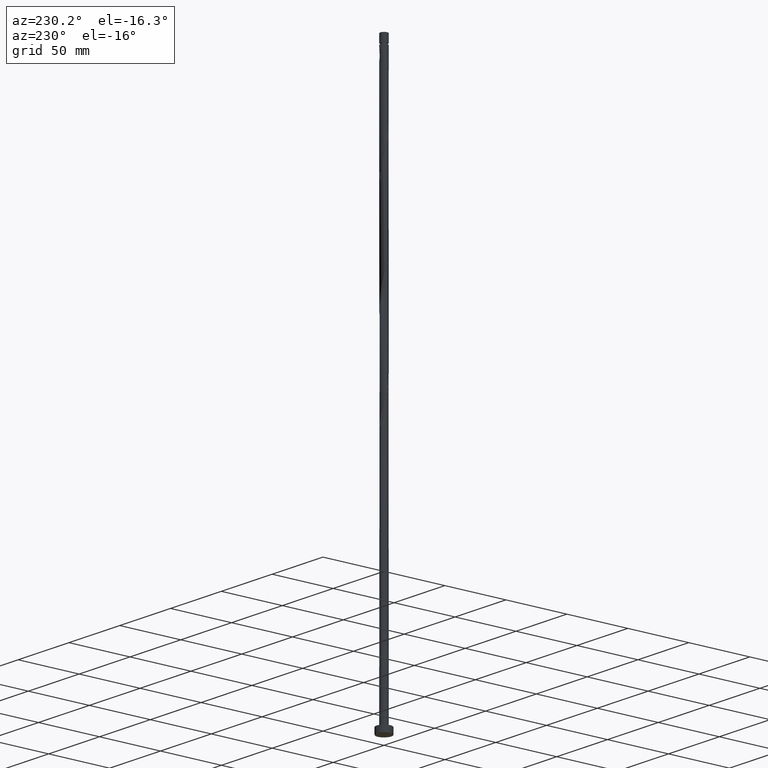
[diagram: clean part render]
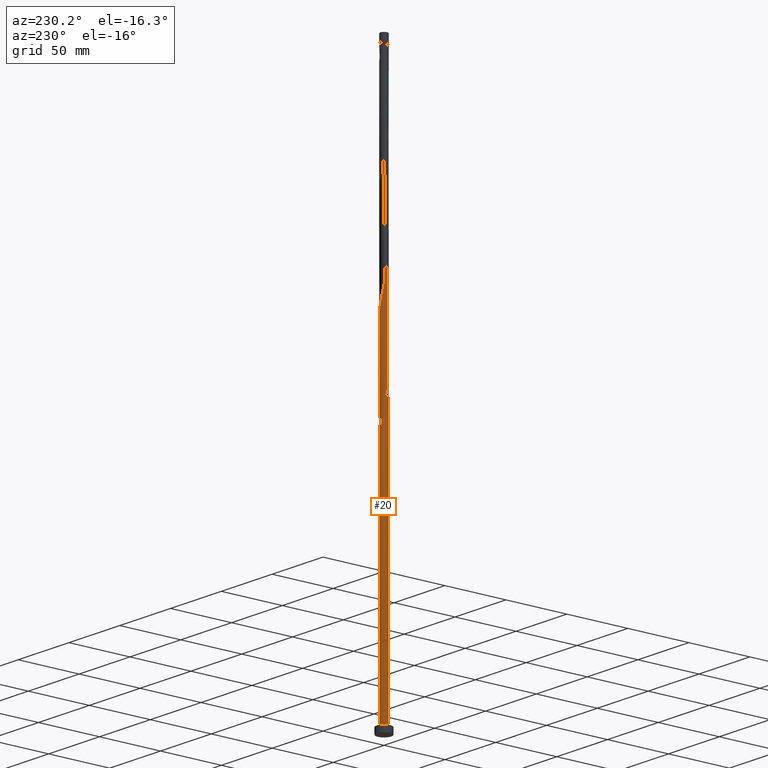
[diagram: same view with one face highlighted and labeled with its STEP entity id]
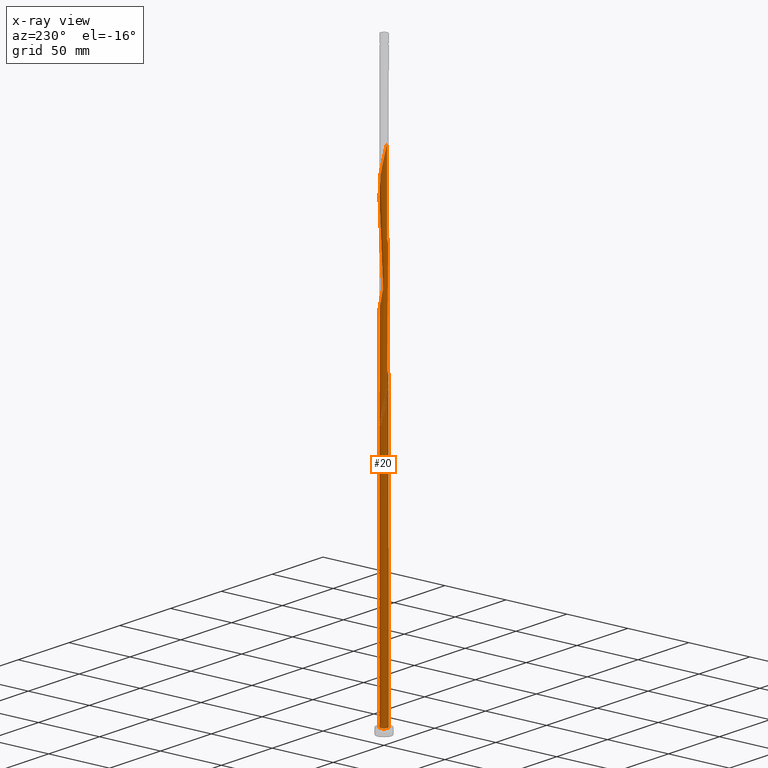
[diagram: x-ray of the same camera — body ghosted, the highlighted face saturated]
A machine part, auxiliary view. The second image highlights one B-rep face of the part: STEP entity #20.
The next image is the same camera in x-ray: the body ghosted, the highlighted face saturated — about 0% of this face is hidden behind the body in this view.
In plain terms, the highlighted cylindrical surface (bore or boss wall) has radius 3 mm, axis along (-0, -0, -1).
Its self-contained STEP definition (entity closure, byte-faithful):
#3 = CARTESIAN_POINT ( 'NONE',  ( -2.129757576223802573, 2.112849418798543155, 293.8623400749142434 ) ) ;
#10 = VECTOR ( 'NONE', #584, 1000.000000000000000 ) ;
#13 = CARTESIAN_POINT ( 'NONE',  ( 2.652881170764466390, 1.431616744321172696, 269.1227567415808153 ) ) ;
#15 = CARTESIAN_POINT ( 'NONE',  ( -3.000000000000000444, 0.000000000000000000, 5.000000000000000000 ) ) ;
#20 = ADVANCED_FACE ( 'NONE', ( #776 ), #1052, .T. ) ;
#21 = CARTESIAN_POINT ( 'NONE',  ( 2.487746701027921947, 1.676638408102570477, 270.4248400749142434 ) ) ;
#28 = CARTESIAN_POINT ( 'NONE',  ( 2.940000000000004388, 0.5969924622639755096, 265.2165067415808721 ) ) ;
#58 = CARTESIAN_POINT ( 'NONE',  ( -2.999976176089781177, -0.01195587277277063848, 220.9456734082475577 ) ) ;
#70 = CARTESIAN_POINT ( 'NONE',  ( -1.656756518304340675, -2.501031355072563578, 233.9665067415808437 ) ) ;
#83 = VERTEX_POINT ( 'NONE', #1685 ) ;
#89 = CARTESIAN_POINT ( 'NONE',  ( -0.5969924622639751766, 2.940000000000003944, 202.7165067415808153 ) ) ;
#103 = CARTESIAN_POINT ( 'NONE',  ( 2.767041272681221020, 1.159086966227606652, 351.1540067415808153 ) ) ;
#106 = ORIENTED_EDGE ( 'NONE', *, *, #1174, .F. ) ;
#110 = CARTESIAN_POINT ( 'NONE',  ( -1.431616744321173584, 2.652881170764465502, 206.6227567415808153 ) ) ;
#112 = CARTESIAN_POINT ( 'NONE',  ( 2.129757576223802129, -2.112849418798543599, 335.5290067415808153 ) ) ;
#117 = CARTESIAN_POINT ( 'NONE',  ( -0.5735401742041599249, 2.944664950138445647, 207.9248400749141865 ) ) ;
#120 = CARTESIAN_POINT ( 'NONE',  ( 2.998798625402031348, 0.3074277363939131869, 347.2477567415807016 ) ) ;
#124 = CARTESIAN_POINT ( 'NONE',  ( 0.5969924622639762868, 2.939999999999999059, 202.7165067415808153 ) ) ;
#133 = CARTESIAN_POINT ( 'NONE',  ( -2.664207629581486714, 1.410426430302974099, 381.1019234082475009 ) ) ;
#142 = CARTESIAN_POINT ( 'NONE',  ( 1.903086606305707251, 2.337855080563639998, 274.3310900749141865 ) ) ;
#151 = CARTESIAN_POINT ( 'NONE',  ( 2.888176173499371391, -0.8635643575599518673, 258.7060900749142434 ) ) ;
#154 = CARTESIAN_POINT ( 'NONE',  ( -2.888176173499371391, 0.8635643575599518673, 217.0394234082475577 ) ) ;
#160 = CARTESIAN_POINT ( 'NONE',  ( -2.652881170764465946, -1.431616744321172918, 310.7894234082476146 ) ) ;
#171 = CARTESIAN_POINT ( 'NONE',  ( -1.159086966227606430, 2.767041272681221020, 288.6540067415808153 ) ) ;
#178 = CARTESIAN_POINT ( 'NONE',  ( -0.8635643575599518673, -2.888176173499371391, 321.2060900749141865 ) ) ;
#211 = CARTESIAN_POINT ( 'NONE',  ( -2.112849418798543599, -2.129757576223802129, 231.3623400749142149 ) ) ;
#226 = ORIENTED_EDGE ( 'NONE', *, *, #1134, .F. ) ;
#237 = CARTESIAN_POINT ( 'NONE',  ( -3.000000000000000444, 0.000000000000000000, 460.5299999999999727 ) ) ;
#248 = CARTESIAN_POINT ( 'NONE',  ( -1.676638408102569588, 2.487746701027922391, 374.5915067415808721 ) ) ;
#253 = CARTESIAN_POINT ( 'NONE',  ( -2.112849418798539158, 2.129757576223799909, 215.7373400749141581 ) ) ;
#260 = CARTESIAN_POINT ( 'NONE',  ( 0.8635643575599523114, 2.888176173499370947, 362.8727567415808153 ) ) ;
#270 = CARTESIAN_POINT ( 'NONE',  ( -2.501031355072564466, 1.656756518304340453, 379.7998400749143002 ) ) ;
#279 = CARTESIAN_POINT ( 'NONE',  ( -1.921660071883964704, 2.322612231291378393, 209.2269234082475293 ) ) ;
#298 = CARTESIAN_POINT ( 'NONE',  ( -0.8635643575599494248, 2.888176173499366506, 209.2269234082475009 ) ) ;
#300 = CARTESIAN_POINT ( 'NONE',  ( 3.001153726777531450, -0.2835159908483711466, 261.3102567415808721 ) ) ;
#303 = CARTESIAN_POINT ( 'NONE',  ( -0.5969924622639751766, 2.940000000000003944, 202.7165067415808153 ) ) ;
#308 = CARTESIAN_POINT ( 'NONE',  ( -2.767041272681221020, -1.159086966227606208, 309.4873400749143002 ) ) ;
#317 = CARTESIAN_POINT ( 'NONE',  ( 1.676638408102569366, -2.487746701027922835, 249.5915067415808721 ) ) ;
#323 = AXIS2_PLACEMENT_3D ( 'NONE', #720, #1940, #1628 ) ;
#325 = CARTESIAN_POINT ( 'NONE',  ( 0.5969924622639757317, -2.940000000000004388, 244.3831734082475577 ) ) ;
#333 = CARTESIAN_POINT ( 'NONE',  ( 2.881201374597976095, 0.8865571881340377214, 266.5185900749141865 ) ) ;
#355 = CARTESIAN_POINT ( 'NONE',  ( -0.2835159908483709801, -3.001153726777531450, 240.4769234082475009 ) ) ;
#364 = CARTESIAN_POINT ( 'NONE',  ( -2.322612231291378393, -1.921660071883964704, 230.0602567415808437 ) ) ;
#367 = VERTEX_POINT ( 'NONE', #926 ) ;
#387 = CARTESIAN_POINT ( 'NONE',  ( 1.656756518304341341, 2.501031355072563578, 358.9665067415808153 ) ) ;
#397 = CARTESIAN_POINT ( 'NONE',  ( 0.8865571881340392757, -2.881201374597975651, 329.0185900749141865 ) ) ;
#411 = LINE ( 'NONE', #732, #450 ) ;
#415 = CARTESIAN_POINT ( 'NONE',  ( -2.322612231291373952, 1.921660071883963150, 217.0394234082474725 ) ) ;
#421 = CARTESIAN_POINT ( 'NONE',  ( 3.001153726777531450, -0.2835159908483711466, 344.6435900749141297 ) ) ;
#434 = CARTESIAN_POINT ( 'NONE',  ( -2.944664950138450976, 0.5735401742041613682, 385.0081734082475009 ) ) ;
#437 = VERTEX_POINT ( 'NONE', #124 ) ;
#447 = CARTESIAN_POINT ( 'NONE',  ( -2.487746701027917950, 1.676638408102567590, 218.3415067415808153 ) ) ;
#448 = CARTESIAN_POINT ( 'NONE',  ( -0.01195587277276957683, 2.999976176089781621, 283.4456734082474441 ) ) ;
#450 = VECTOR ( 'NONE', #1347, 1000.000000000000000 ) ;
#457 = CARTESIAN_POINT ( 'NONE',  ( -2.999976176089781177, -0.01195587277277063848, 304.2790067415808721 ) ) ;
#467 = CARTESIAN_POINT ( 'NONE',  ( 2.129757576223802129, -2.112849418798543599, 252.1956734082475009 ) ) ;
#475 = CARTESIAN_POINT ( 'NONE',  ( -2.664207629581486714, 1.410426430302974099, 297.7685900749143002 ) ) ;
#488 = CARTESIAN_POINT ( 'NONE',  ( -1.676638408102569588, 2.487746701027922391, 291.2581734082475009 ) ) ;
#490 = DIRECTION ( 'NONE',  ( 0.000000000000000000, 0.000000000000000000, 1.000000000000000000 ) ) ;
#496 =( BOUNDED_CURVE ( )  B_SPLINE_CURVE ( 2, ( #818, #1440, #58, #1894, #808, #975, #1125, #1903, #1737, #364, #211, #1450, #70, #657, #1884, #510, #1729, #355, #967, #1378, #325, #937, #1670, #917, #317, #632, #467, #1853, #1824, #1210, #1863, #151, #1074, #300, #759, #753, #28, #333, #1977, #13, #21, #1531, #607, #142, #597, #1238, #947, #1687, #626, #1247, #448, #1525, #927, #1220, #171, #618, #488, #1540, #3, #1707, #1058, #475, #1093, #1368, #778, #1833, #457, #912, #1067, #1679, #308, #160, #767, #1385, #1230, #1843, #1395, #1083, #1697, #178, #1549, #787, #1405, #897, #1949, #397, #1496, #1479, #1019, #570, #112, #1794, #1332, #1941, #721, #549, #1171, #421, #1160, #120, #1770, #853, #103, #1488, #1806, #1629, #1030, #996, #387, #1039, #1316, #260, #1468, #1929, #1917, #1194, #1507, #1150, #1782, #1643, #248, #1007, #1306, #1760, #270, #133, #876, #887, #434, #1607, #700 ),
 .UNSPECIFIED., .F., .T. ) 
 B_SPLINE_CURVE_WITH_KNOTS ( ( 3, 2, 2, 2, 2, 2, 2, 2, 2, 2, 2, 2, 2, 2, 2, 2, 2, 2, 2, 2, 2, 2, 2, 2, 2, 2, 2, 2, 2, 2, 2, 2, 2, 2, 2, 2, 2, 2, 2, 2, 2, 2, 2, 2, 2, 2, 2, 2, 2, 2, 2, 2, 2, 2, 2, 2, 2, 2, 2, 2, 2, 2, 2, 2, 2, 3 ),
 ( 0.05452869021808719879, 0.05468750000000000000, 0.06250000000000000000, 0.07031250000000000000, 0.07812500000000000000, 0.08593750000000000000, 0.09375000000000000000, 0.1015625000000000000, 0.1093750000000000000, 0.1171875000000000000, 0.1250000000000000000, 0.1328125000000000000, 0.1406250000000000000, 0.1484375000000000000, 0.1562500000000000000, 0.1640625000000000000, 0.1718750000000000000, 0.1796875000000000000, 0.1875000000000000000, 0.1953125000000000000, 0.2031250000000000000, 0.2109375000000000000, 0.2187500000000000000, 0.2265625000000000000, 0.2343750000000000000, 0.2421875000000000000, 0.2500000000000000000, 0.2578125000000000000, 0.2656250000000000000, 0.2734375000000000000, 0.2812500000000000000, 0.2890625000000000000, 0.2968750000000000000, 0.3046875000000000000, 0.3125000000000000000, 0.3203125000000000000, 0.3281250000000000000, 0.3359375000000000000, 0.3437500000000000000, 0.3515625000000000000, 0.3593750000000000000, 0.3671875000000000000, 0.3750000000000000000, 0.3828125000000000000, 0.3906250000000000000, 0.3984375000000000000, 0.4062500000000000000, 0.4140625000000000000, 0.4218750000000000000, 0.4296875000000000000, 0.4375000000000000000, 0.4453125000000000000, 0.4531250000000000000, 0.4609375000000000000, 0.4687500000000000000, 0.4765625000000000000, 0.4843750000000000000, 0.4921875000000000000, 0.5000000000000000000, 0.5078125000000000000, 0.5156250000000000000, 0.5234375000000000000, 0.5312500000000000000, 0.5390625000000000000, 0.5468750000000000000, 0.5545286902180869282 ),
 .UNSPECIFIED. ) 
 CURVE ( )  GEOMETRIC_REPRESENTATION_ITEM ( )  RATIONAL_B_SPLINE_CURVE ( ( 0.9089165573359756500, 0.9090019243628804091, 0.9090909090909722323, 0.9047133878838782284, 0.9090909090909722323, 0.9047133878838782284, 0.9090909090909722323, 0.9047133878838782284, 0.9090909090909722323, 0.9047133878838782284, 0.9090909090909722323, 0.9047133878838782284, 0.9090909090909722323, 0.9047133878838782284, 0.9090909090909722323, 0.9047133878838782284, 0.9090909090909722323, 0.9047133878838782284, 0.9090909090909722323, 0.9047133878838782284, 0.9090909090909722323, 0.9047133878838782284, 0.9090909090909722323, 0.9047133878838782284, 0.9090909090909722323, 0.9047133878838782284, 0.9090909090909722323, 0.9047133878838782284, 0.9090909090909722323, 0.9047133878838782284, 0.9090909090909722323, 0.9047133878838782284, 0.9090909090909722323, 0.9047133878838782284, 0.9090909090909722323, 0.9047133878838782284, 0.9090909090909722323, 0.9047133878838782284, 0.9090909090909722323, 0.9047133878838782284, 0.9090909090909722323, 0.9047133878838782284, 0.9090909090909722323, 0.9047133878838782284, 0.9090909090909722323, 0.9047133878838782284, 0.9090909090909722323, 0.9047133878838782284, 0.9090909090909722323, 0.9047133878838782284, 0.9090909090909722323, 0.9047133878838782284, 0.9090909090909722323, 0.9047133878838782284, 0.9090909090909722323, 0.9047133878838782284, 0.9090909090909722323, 0.9047133878838782284, 0.9090909090909722323, 0.9047133878838782284, 0.9090909090909722323, 0.9047133878838782284, 0.9090909090909722323, 0.9047133878838782284, 0.9090909090909722323, 0.9047133878838782284, 0.9090909090909722323, 0.9047133878838782284, 0.9090909090909722323, 0.9047133878838782284, 0.9090909090909722323, 0.9047133878838782284, 0.9090909090909722323, 0.9047133878838782284, 0.9090909090909722323, 0.9047133878838782284, 0.9090909090909722323, 0.9047133878838782284, 0.9090909090909722323, 0.9047133878838782284, 0.9090909090909722323, 0.9047133878838782284, 0.9090909090909722323, 0.9047133878838782284, 0.9090909090909722323, 0.9047133878838782284, 0.9090909090909722323, 0.9047133878838782284, 0.9090909090909722323, 0.9047133878838782284, 0.9090909090909722323, 0.9047133878838782284, 0.9090909090909722323, 0.9047133878838782284, 0.9090909090909722323, 0.9047133878838782284, 0.9090909090909722323, 0.9047133878838782284, 0.9090909090909722323, 0.9047133878838782284, 0.9090909090909722323, 0.9047133878838782284, 0.9090909090909722323, 0.9047133878838782284, 0.9090909090909722323, 0.9047133878838782284, 0.9090909090909722323, 0.9047133878838782284, 0.9090909090909722323, 0.9047133878838782284, 0.9090909090909722323, 0.9047133878838782284, 0.9090909090909722323, 0.9047133878838782284, 0.9090909090909722323, 0.9047133878838782284, 0.9090909090909722323, 0.9047133878838782284, 0.9090909090909722323, 0.9047133878838782284, 0.9090909090909722323, 0.9047133878838782284, 0.9090909090909722323, 0.9047133878838782284, 0.9090909090909722323, 0.9047133878838782284, 0.9090909090909722323, 0.9047133878838782284, 0.9090909090909722323, 0.9048023726119701626, 0.9089165573359754280 ) ) 
 REPRESENTATION_ITEM ( '' )  );
#510 = CARTESIAN_POINT ( 'NONE',  ( -0.8635643575599518673, -2.888176173499371391, 237.8727567415808437 ) ) ;
#515 = CIRCLE ( 'NONE', #869, 3.000000000000000444 ) ;
#517 = EDGE_CURVE ( 'NONE', #1500, #1524, #1041, .T. ) ;
#549 = CARTESIAN_POINT ( 'NONE',  ( 2.888176173499371391, -0.8635643575599518673, 342.0394234082475577 ) ) ;
#570 = CARTESIAN_POINT ( 'NONE',  ( 1.921660071883964704, -2.322612231291378393, 334.2269234082475009 ) ) ;
#578 = CARTESIAN_POINT ( 'NONE',  ( 0.01195587277277136359, 2.999976176089776736, 205.3206734082474725 ) ) ;
#580 = AXIS2_PLACEMENT_3D ( 'NONE', #789, #490, #1688 ) ;
#583 = CARTESIAN_POINT ( 'NONE',  ( -2.337855080563639998, 1.903086606305707695, 211.8310900749141297 ) ) ;
#584 = DIRECTION ( 'NONE',  ( -0.000000000000000000, -0.000000000000000000, -1.000000000000000000 ) ) ;
#589 = CARTESIAN_POINT ( 'NONE',  ( -1.136995393931460097, 2.776191901540424833, 210.5290067415808153 ) ) ;
#590 = ORIENTED_EDGE ( 'NONE', *, *, #1174, .T. ) ;
#595 = CARTESIAN_POINT ( 'NONE',  ( -2.998798625402027351, 0.3074277363939126317, 224.8519234082474725 ) ) ;
#597 = CARTESIAN_POINT ( 'NONE',  ( 1.656756518304341341, 2.501031355072563578, 275.6331734082476714 ) ) ;
#607 = CARTESIAN_POINT ( 'NONE',  ( 2.112849418798544043, 2.129757576223801685, 273.0290067415808153 ) ) ;
#618 = CARTESIAN_POINT ( 'NONE',  ( -1.431616744321173584, 2.652881170764465502, 289.9560900749141865 ) ) ;
#626 = CARTESIAN_POINT ( 'NONE',  ( 0.5735401742041633666, 2.944664950138450976, 280.8415067415808721 ) ) ;
#632 = CARTESIAN_POINT ( 'NONE',  ( 1.921660071883964704, -2.322612231291378393, 250.8935900749141865 ) ) ;
#634 = EDGE_CURVE ( 'NONE', #911, #1763, #959, .T. ) ;
#657 = CARTESIAN_POINT ( 'NONE',  ( -1.410426430302974099, -2.664207629581487602, 235.2685900749141581 ) ) ;
#700 = CARTESIAN_POINT ( 'NONE',  ( -3.000000000000003553, 1.916017180564031245E-15, 387.5596430969172275 ) ) ;
#720 = CARTESIAN_POINT ( 'NONE',  ( 0.000000000000000000, 0.000000000000000000, 5.000000000000000000 ) ) ;
#721 = CARTESIAN_POINT ( 'NONE',  ( 2.776191901540429718, -1.136995393931462539, 340.7373400749142434 ) ) ;
#732 = CARTESIAN_POINT ( 'NONE',  ( -3.000000000000000444, 0.000000000000000000, 460.5299999999999727 ) ) ;
#738 = CARTESIAN_POINT ( 'NONE',  ( -2.999999999999999556, 0.005977960122778577280, 226.1803501650603891 ) ) ;
#750 = CARTESIAN_POINT ( 'NONE',  ( -1.656756518304337789, 2.501031355072560469, 213.1331734082474441 ) ) ;
#753 = CARTESIAN_POINT ( 'NONE',  ( 2.998798625402031348, 0.3074277363939131869, 263.9144234082475009 ) ) ;
#758 = DIRECTION ( 'NONE',  ( -0.000000000000000000, -0.000000000000000000, -1.000000000000000000 ) ) ;
#759 = CARTESIAN_POINT ( 'NONE',  ( 2.999976176089781621, 0.01195587277276968438, 262.6123400749142434 ) ) ;
#767 = CARTESIAN_POINT ( 'NONE',  ( -2.487746701027922391, -1.676638408102569366, 312.0915067415808721 ) ) ;
#776 = FACE_OUTER_BOUND ( 'NONE', #1294, .T. ) ;
#778 = CARTESIAN_POINT ( 'NONE',  ( -2.944664950138450976, 0.5735401742041613682, 301.6748400749141297 ) ) ;
#787 = CARTESIAN_POINT ( 'NONE',  ( -0.2835159908483709801, -3.001153726777531450, 323.8102567415808721 ) ) ;
#789 = CARTESIAN_POINT ( 'NONE',  ( 0.000000000000000000, 0.000000000000000000, 5.000000000000000000 ) ) ;
#808 = CARTESIAN_POINT ( 'NONE',  ( -2.940000000000004388, -0.5969924622639758427, 223.5498400749142434 ) ) ;
#818 = CARTESIAN_POINT ( 'NONE',  ( -3.000000000000003553, 1.916017180564031245E-15, 220.8929764302506555 ) ) ;
#853 = CARTESIAN_POINT ( 'NONE',  ( 2.881201374597976095, 0.8865571881340377214, 349.8519234082475009 ) ) ;
#860 = CARTESIAN_POINT ( 'NONE',  ( -3.000000000000003553, 1.916017180564031245E-15, 220.8929764302506555 ) ) ;
#869 = AXIS2_PLACEMENT_3D ( 'NONE', #1279, #1585, #1430 ) ;
#876 = CARTESIAN_POINT ( 'NONE',  ( -2.776191901540429718, 1.136995393931462983, 382.4040067415809290 ) ) ;
#886 = CARTESIAN_POINT ( 'NONE',  ( -3.000000000000004441, 0.2894394447869437226, 219.6169963248346164 ) ) ;
#887 = CARTESIAN_POINT ( 'NONE',  ( -2.888176173499371391, 0.8635643575599518673, 383.7060900749142434 ) ) ;
#896 = CARTESIAN_POINT ( 'NONE',  ( -2.776191901540429718, 1.136995393931462983, 215.7373400749142149 ) ) ;
#897 = CARTESIAN_POINT ( 'NONE',  ( 0.3074277363939120211, -2.998798625402031348, 326.4144234082475577 ) ) ;
#901 = CARTESIAN_POINT ( 'NONE',  ( -1.903086606305704143, 2.337855080563636889, 214.4352567415808153 ) ) ;
#911 = VERTEX_POINT ( 'NONE', #15 ) ;
#912 = CARTESIAN_POINT ( 'NONE',  ( -2.998798625402031348, -0.3074277363939121321, 305.5810900749141865 ) ) ;
#917 = CARTESIAN_POINT ( 'NONE',  ( 1.431616744321172696, -2.652881170764466390, 248.2894234082475293 ) ) ;
#926 = CARTESIAN_POINT ( 'NONE',  ( -2.999999999999999556, -1.053063917333350848E-15, 226.2067037195776891 ) ) ;
#927 = CARTESIAN_POINT ( 'NONE',  ( -0.5969924622639751766, 2.940000000000004388, 286.0498400749141297 ) ) ;
#937 = CARTESIAN_POINT ( 'NONE',  ( 0.8865571881340392757, -2.881201374597975651, 245.6852567415808437 ) ) ;
#947 = CARTESIAN_POINT ( 'NONE',  ( 1.136995393931462539, 2.776191901540429718, 278.2373400749143002 ) ) ;
#959 = CIRCLE ( 'NONE', #323, 3.000000000000000444 ) ;
#967 = CARTESIAN_POINT ( 'NONE',  ( 0.01195587277276988908, -2.999976176089781621, 241.7790067415809006 ) ) ;
#975 = CARTESIAN_POINT ( 'NONE',  ( -2.881201374597975651, -0.8865571881340392757, 224.8519234082474725 ) ) ;
#996 = CARTESIAN_POINT ( 'NONE',  ( 1.903086606305707251, 2.337855080563639998, 357.6644234082475577 ) ) ;
#1007 = CARTESIAN_POINT ( 'NONE',  ( -1.921660071883964704, 2.322612231291378393, 375.8935900749141297 ) ) ;
#1012 = CARTESIAN_POINT ( 'NONE',  ( -0.2835159908483700919, 3.001153726777527453, 206.6227567415807869 ) ) ;
#1019 = CARTESIAN_POINT ( 'NONE',  ( 1.676638408102569366, -2.487746701027922835, 332.9248400749142434 ) ) ;
#1024 = CARTESIAN_POINT ( 'NONE',  ( 0.5969924622639762868, 2.939999999999999059, 202.7165067415808153 ) ) ;
#1030 = CARTESIAN_POINT ( 'NONE',  ( 2.112849418798544043, 2.129757576223801685, 356.3623400749141297 ) ) ;
#1039 = CARTESIAN_POINT ( 'NONE',  ( 1.410426430302975653, 2.664207629581485826, 360.2685900749141297 ) ) ;
#1041 =( BOUNDED_CURVE ( )  B_SPLINE_CURVE ( 2, ( #303, #1642, #1495, #110, #1959, #279, #1361, #583, #1193, #1805, #896, #154, #1815, #886, #1518 ),
 .UNSPECIFIED., .F., .T. ) 
 B_SPLINE_CURVE_WITH_KNOTS ( ( 3, 2, 2, 2, 2, 2, 2, 3 ),
 ( 0.000000000000000000, 0.007812500000000000000, 0.01562500000000000000, 0.02343750000000000000, 0.03125000000000000000, 0.03906250000000000000, 0.04687500000000000000, 0.05452869021808719185 ),
 .UNSPECIFIED. ) 
 CURVE ( )  GEOMETRIC_REPRESENTATION_ITEM ( )  RATIONAL_B_SPLINE_CURVE ( ( 0.9090909090909722323, 0.9047133878838782284, 0.9090909090909722323, 0.9047133878838782284, 0.9090909090909722323, 0.9047133878838782284, 0.9090909090909722323, 0.9047133878838782284, 0.9090909090909722323, 0.9047133878838782284, 0.9090909090909722323, 0.9047133878838782284, 0.9090909090909722323, 0.9048023726119700516, 0.9089165573359756500 ) ) 
 REPRESENTATION_ITEM ( '' )  );
#1051 = EDGE_CURVE ( 'NONE', #1500, #437, #515, .T. ) ;
#1052 = CYLINDRICAL_SURFACE ( 'NONE', #1249, 3.000000000000000444 ) ;
#1058 = CARTESIAN_POINT ( 'NONE',  ( -2.501031355072564466, 1.656756518304340453, 296.4665067415808721 ) ) ;
#1067 = CARTESIAN_POINT ( 'NONE',  ( -2.940000000000004388, -0.5969924622639758427, 306.8831734082475577 ) ) ;
#1074 = CARTESIAN_POINT ( 'NONE',  ( 2.944664950138450976, -0.5735401742041631445, 260.0081734082475577 ) ) ;
#1075 = EDGE_CURVE ( 'NONE', #1524, #83, #496, .T. ) ;
#1083 = CARTESIAN_POINT ( 'NONE',  ( -1.410426430302974099, -2.664207629581487602, 318.6019234082474441 ) ) ;
#1091 = DIRECTION ( 'NONE',  ( -1.000000000000000000, 0.000000000000000000, 0.000000000000000000 ) ) ;
#1093 = CARTESIAN_POINT ( 'NONE',  ( -2.776191901540429718, 1.136995393931462983, 299.0706734082475009 ) ) ;
#1101 = ORIENTED_EDGE ( 'NONE', *, *, #634, .T. ) ;
#1125 = CARTESIAN_POINT ( 'NONE',  ( -2.767041272681221020, -1.159086966227606208, 226.1540067415808153 ) ) ;
#1134 = EDGE_CURVE ( 'NONE', #83, #367, #411, .T. ) ;
#1150 = CARTESIAN_POINT ( 'NONE',  ( -0.8865571881340392757, 2.881201374597975651, 370.6852567415808153 ) ) ;
#1160 = CARTESIAN_POINT ( 'NONE',  ( 2.999976176089781621, 0.01195587277276968438, 345.9456734082475577 ) ) ;
#1167 =( BOUNDED_CURVE ( )  B_SPLINE_CURVE ( 2, ( #1177, #738, #1955, #595, #1649, #1789, #1668, #1776, #447, #415, #253, #901, #750, #1209, #589, #298, #117, #1012, #578, #1199, #1024 ),
 .UNSPECIFIED., .F., .T. ) 
 B_SPLINE_CURVE_WITH_KNOTS ( ( 3, 2, 2, 2, 2, 2, 2, 2, 2, 2, 3 ),
 ( 0.9295286902180870392, 0.9296875000000000000, 0.9375000000000000000, 0.9453125000000000000, 0.9531250000000000000, 0.9609375000000000000, 0.9687500000000000000, 0.9765625000000000000, 0.9843750000000000000, 0.9921875000000000000, 1.000000000000000000 ),
 .UNSPECIFIED. ) 
 CURVE ( )  GEOMETRIC_REPRESENTATION_ITEM ( )  RATIONAL_B_SPLINE_CURVE ( ( 0.9089165573359695438, 0.9090019243628744139, 0.9090909090909662371, 0.9047133878838722332, 0.9090909090909662371, 0.9047133878838722332, 0.9090909090909662371, 0.9047133878838722332, 0.9090909090909662371, 0.9047133878838722332, 0.9090909090909662371, 0.9047133878838722332, 0.9090909090909662371, 0.9047133878838722332, 0.9090909090909662371, 0.9047133878838722332, 0.9090909090909662371, 0.9047133878838722332, 0.9090909090909662371, 0.9047133878838722332, 0.9090909090909662371 ) ) 
 REPRESENTATION_ITEM ( '' )  );
#1171 = CARTESIAN_POINT ( 'NONE',  ( 2.944664950138450976, -0.5735401742041631445, 343.3415067415808721 ) ) ;
#1174 = EDGE_CURVE ( 'NONE', #1524, #911, #1961, .T. ) ;
#1177 = CARTESIAN_POINT ( 'NONE',  ( -2.999999999999999556, -1.053063917333350651E-15, 226.2067037195776891 ) ) ;
#1193 = CARTESIAN_POINT ( 'NONE',  ( -2.501031355072564466, 1.656756518304340453, 213.1331734082475577 ) ) ;
#1194 = CARTESIAN_POINT ( 'NONE',  ( -0.3074277363939130758, 2.998798625402031348, 368.0810900749142434 ) ) ;
#1199 = CARTESIAN_POINT ( 'NONE',  ( 0.3074277363939126873, 2.998798625402027351, 204.0185900749141865 ) ) ;
#1209 = CARTESIAN_POINT ( 'NONE',  ( -1.410426430302971212, 2.664207629581483605, 211.8310900749141865 ) ) ;
#1210 = CARTESIAN_POINT ( 'NONE',  ( 2.664207629581486714, -1.410426430302975653, 256.1019234082475009 ) ) ;
#1220 = CARTESIAN_POINT ( 'NONE',  ( -0.8865571881340392757, 2.881201374597975651, 287.3519234082475577 ) ) ;
#1230 = CARTESIAN_POINT ( 'NONE',  ( -2.112849418798543599, -2.129757576223802129, 314.6956734082475577 ) ) ;
#1238 = CARTESIAN_POINT ( 'NONE',  ( 1.410426430302975653, 2.664207629581485826, 276.9352567415808153 ) ) ;
#1247 = CARTESIAN_POINT ( 'NONE',  ( 0.2835159908483712576, 3.001153726777531450, 282.1435900749141865 ) ) ;
#1249 = AXIS2_PLACEMENT_3D ( 'NONE', #1403, #758, #1091 ) ;
#1279 = CARTESIAN_POINT ( 'NONE',  ( 0.000000000000000000, 0.000000000000000000, 202.7165067415808153 ) ) ;
#1294 = EDGE_LOOP ( 'NONE', ( #226, #1634, #590, #1101, #1367, #106, #1638, #1773, #1423 ) ) ;
#1306 = CARTESIAN_POINT ( 'NONE',  ( -2.129757576223802573, 2.112849418798543155, 377.1956734082475577 ) ) ;
#1316 = CARTESIAN_POINT ( 'NONE',  ( 1.136995393931462539, 2.776191901540429718, 361.5706734082475577 ) ) ;
#1331 = EDGE_CURVE ( 'NONE', #1763, #911, #1453, .T. ) ;
#1332 = CARTESIAN_POINT ( 'NONE',  ( 2.501031355072563578, -1.656756518304341341, 338.1331734082475577 ) ) ;
#1347 = DIRECTION ( 'NONE',  ( -0.000000000000000000, -0.000000000000000000, -1.000000000000000000 ) ) ;
#1361 = CARTESIAN_POINT ( 'NONE',  ( -2.129757576223802573, 2.112849418798543155, 210.5290067415808721 ) ) ;
#1367 = ORIENTED_EDGE ( 'NONE', *, *, #1331, .T. ) ;
#1368 = CARTESIAN_POINT ( 'NONE',  ( -2.888176173499371391, 0.8635643575599518673, 300.3727567415808153 ) ) ;
#1378 = CARTESIAN_POINT ( 'NONE',  ( 0.3074277363939120211, -2.998798625402031348, 243.0810900749141581 ) ) ;
#1385 = CARTESIAN_POINT ( 'NONE',  ( -2.322612231291378393, -1.921660071883964704, 313.3935900749143002 ) ) ;
#1395 = CARTESIAN_POINT ( 'NONE',  ( -1.656756518304340675, -2.501031355072563578, 317.2998400749141297 ) ) ;
#1403 = CARTESIAN_POINT ( 'NONE',  ( 0.000000000000000000, 0.000000000000000000, 460.5299999999999727 ) ) ;
#1405 = CARTESIAN_POINT ( 'NONE',  ( 0.01195587277276988908, -2.999976176089781621, 325.1123400749141865 ) ) ;
#1423 = ORIENTED_EDGE ( 'NONE', *, *, #1641, .F. ) ;
#1430 = DIRECTION ( 'NONE',  ( -1.000000000000000000, 0.000000000000000000, 0.000000000000000000 ) ) ;
#1440 = CARTESIAN_POINT ( 'NONE',  ( -3.000000000000003553, -0.005977960122783736348, 220.9193299847679555 ) ) ;
#1450 = CARTESIAN_POINT ( 'NONE',  ( -1.903086606305708139, -2.337855080563639554, 232.6644234082475009 ) ) ;
#1453 = CIRCLE ( 'NONE', #580, 3.000000000000000444 ) ;
#1468 = CARTESIAN_POINT ( 'NONE',  ( 0.5735401742041633666, 2.944664950138450976, 364.1748400749142434 ) ) ;
#1479 = CARTESIAN_POINT ( 'NONE',  ( 1.431616744321172696, -2.652881170764466390, 331.6227567415807584 ) ) ;
#1488 = CARTESIAN_POINT ( 'NONE',  ( 2.652881170764466390, 1.431616744321172696, 352.4560900749141865 ) ) ;
#1495 = CARTESIAN_POINT ( 'NONE',  ( -1.159086966227606430, 2.767041272681221020, 205.3206734082475577 ) ) ;
#1496 = CARTESIAN_POINT ( 'NONE',  ( 1.159086966227606652, -2.767041272681221020, 330.3206734082475577 ) ) ;
#1500 = VERTEX_POINT ( 'NONE', #89 ) ;
#1507 = CARTESIAN_POINT ( 'NONE',  ( -0.5969924622639751766, 2.940000000000004388, 369.3831734082475009 ) ) ;
#1518 = CARTESIAN_POINT ( 'NONE',  ( -3.000000000000003553, 1.916017180564031245E-15, 220.8929764302506555 ) ) ;
#1524 = VERTEX_POINT ( 'NONE', #860 ) ;
#1525 = CARTESIAN_POINT ( 'NONE',  ( -0.3074277363939130758, 2.998798625402031348, 284.7477567415809858 ) ) ;
#1531 = CARTESIAN_POINT ( 'NONE',  ( 2.322612231291378393, 1.921660071883964704, 271.7269234082476146 ) ) ;
#1540 = CARTESIAN_POINT ( 'NONE',  ( -1.921660071883964704, 2.322612231291378393, 292.5602567415808153 ) ) ;
#1549 = CARTESIAN_POINT ( 'NONE',  ( -0.5735401742041614792, -2.944664950138450976, 322.5081734082475009 ) ) ;
#1585 = DIRECTION ( 'NONE',  ( 0.000000000000000000, -0.000000000000000000, -1.000000000000000000 ) ) ;
#1607 = CARTESIAN_POINT ( 'NONE',  ( -3.000000000000003109, 0.2894394447869538811, 386.2836629915012168 ) ) ;
#1628 = DIRECTION ( 'NONE',  ( 1.000000000000000000, 0.000000000000000000, 0.000000000000000000 ) ) ;
#1629 = CARTESIAN_POINT ( 'NONE',  ( 2.322612231291378393, 1.921660071883964704, 355.0602567415809290 ) ) ;
#1634 = ORIENTED_EDGE ( 'NONE', *, *, #1075, .F. ) ;
#1638 = ORIENTED_EDGE ( 'NONE', *, *, #517, .F. ) ;
#1641 = EDGE_CURVE ( 'NONE', #367, #437, #1167, .T. ) ;
#1642 = CARTESIAN_POINT ( 'NONE',  ( -0.8865571881340392757, 2.881201374597975651, 204.0185900749141865 ) ) ;
#1643 = CARTESIAN_POINT ( 'NONE',  ( -1.431616744321173584, 2.652881170764465502, 373.2894234082475009 ) ) ;
#1649 = CARTESIAN_POINT ( 'NONE',  ( -2.939999999999998614, 0.5969924622639757317, 223.5498400749141865 ) ) ;
#1668 = CARTESIAN_POINT ( 'NONE',  ( -2.767041272681216135, 1.159086966227605542, 220.9456734082475577 ) ) ;
#1670 = CARTESIAN_POINT ( 'NONE',  ( 1.159086966227606652, -2.767041272681221020, 246.9873400749142149 ) ) ;
#1679 = CARTESIAN_POINT ( 'NONE',  ( -2.881201374597975651, -0.8865571881340392757, 308.1852567415807584 ) ) ;
#1685 = CARTESIAN_POINT ( 'NONE',  ( -3.000000000000003553, 1.916017180564031245E-15, 387.5596430969172275 ) ) ;
#1687 = CARTESIAN_POINT ( 'NONE',  ( 0.8635643575599523114, 2.888176173499370947, 279.5394234082475009 ) ) ;
#1688 = DIRECTION ( 'NONE',  ( 1.000000000000000000, 0.000000000000000000, 0.000000000000000000 ) ) ;
#1697 = CARTESIAN_POINT ( 'NONE',  ( -1.136995393931462539, -2.776191901540429718, 319.9040067415808153 ) ) ;
#1707 = CARTESIAN_POINT ( 'NONE',  ( -2.337855080563639998, 1.903086606305707695, 295.1644234082474441 ) ) ;
#1729 = CARTESIAN_POINT ( 'NONE',  ( -0.5735401742041614792, -2.944664950138450976, 239.1748400749142434 ) ) ;
#1737 = CARTESIAN_POINT ( 'NONE',  ( -2.487746701027922391, -1.676638408102569366, 228.7581734082475577 ) ) ;
#1760 = CARTESIAN_POINT ( 'NONE',  ( -2.337855080563639998, 1.903086606305707695, 378.4977567415808721 ) ) ;
#1763 = VERTEX_POINT ( 'NONE', #1975 ) ;
#1770 = CARTESIAN_POINT ( 'NONE',  ( 2.940000000000004388, 0.5969924622639755096, 348.5498400749143002 ) ) ;
#1773 = ORIENTED_EDGE ( 'NONE', *, *, #1051, .T. ) ;
#1776 = CARTESIAN_POINT ( 'NONE',  ( -2.652881170764461949, 1.431616744321172030, 219.6435900749141865 ) ) ;
#1782 = CARTESIAN_POINT ( 'NONE',  ( -1.159086966227606430, 2.767041272681221020, 371.9873400749141865 ) ) ;
#1789 = CARTESIAN_POINT ( 'NONE',  ( -2.881201374597971210, 0.8865571881340387206, 222.2477567415808437 ) ) ;
#1794 = CARTESIAN_POINT ( 'NONE',  ( 2.337855080563639554, -1.903086606305708139, 336.8310900749142434 ) ) ;
#1805 = CARTESIAN_POINT ( 'NONE',  ( -2.664207629581486714, 1.410426430302974099, 214.4352567415808153 ) ) ;
#1806 = CARTESIAN_POINT ( 'NONE',  ( 2.487746701027921947, 1.676638408102570477, 353.7581734082475009 ) ) ;
#1815 = CARTESIAN_POINT ( 'NONE',  ( -2.944664950138450976, 0.5735401742041613682, 218.3415067415808437 ) ) ;
#1824 = CARTESIAN_POINT ( 'NONE',  ( 2.501031355072563578, -1.656756518304341341, 254.7998400749142434 ) ) ;
#1833 = CARTESIAN_POINT ( 'NONE',  ( -3.001153726777531894, 0.2835159908483708135, 302.9769234082475009 ) ) ;
#1843 = CARTESIAN_POINT ( 'NONE',  ( -1.903086606305708139, -2.337855080563639554, 315.9977567415808153 ) ) ;
#1853 = CARTESIAN_POINT ( 'NONE',  ( 2.337855080563639554, -1.903086606305708139, 253.4977567415808721 ) ) ;
#1863 = CARTESIAN_POINT ( 'NONE',  ( 2.776191901540429718, -1.136995393931462539, 257.4040067415808721 ) ) ;
#1884 = CARTESIAN_POINT ( 'NONE',  ( -1.136995393931462539, -2.776191901540429718, 236.5706734082475577 ) ) ;
#1894 = CARTESIAN_POINT ( 'NONE',  ( -2.998798625402031348, -0.3074277363939121321, 222.2477567415808437 ) ) ;
#1903 = CARTESIAN_POINT ( 'NONE',  ( -2.652881170764465946, -1.431616744321172918, 227.4560900749141865 ) ) ;
#1917 = CARTESIAN_POINT ( 'NONE',  ( -0.01195587277276957683, 2.999976176089781621, 366.7790067415808721 ) ) ;
#1929 = CARTESIAN_POINT ( 'NONE',  ( 0.2835159908483712576, 3.001153726777531450, 365.4769234082475577 ) ) ;
#1940 = DIRECTION ( 'NONE',  ( 0.000000000000000000, 0.000000000000000000, 1.000000000000000000 ) ) ;
#1941 = CARTESIAN_POINT ( 'NONE',  ( 2.664207629581486714, -1.410426430302975653, 339.4352567415809290 ) ) ;
#1949 = CARTESIAN_POINT ( 'NONE',  ( 0.5969924622639757317, -2.940000000000004388, 327.7165067415808721 ) ) ;
#1955 = CARTESIAN_POINT ( 'NONE',  ( -2.999976176089776736, 0.01195587277277147288, 226.1540067415808153 ) ) ;
#1959 = CARTESIAN_POINT ( 'NONE',  ( -1.676638408102569588, 2.487746701027922391, 207.9248400749142149 ) ) ;
#1961 = LINE ( 'NONE', #237, #10 ) ;
#1975 = CARTESIAN_POINT ( 'NONE',  ( 3.000000000000000444, 0.000000000000000000, 5.000000000000000000 ) ) ;
#1977 = CARTESIAN_POINT ( 'NONE',  ( 2.767041272681221020, 1.159086966227606652, 267.8206734082475009 ) ) ;